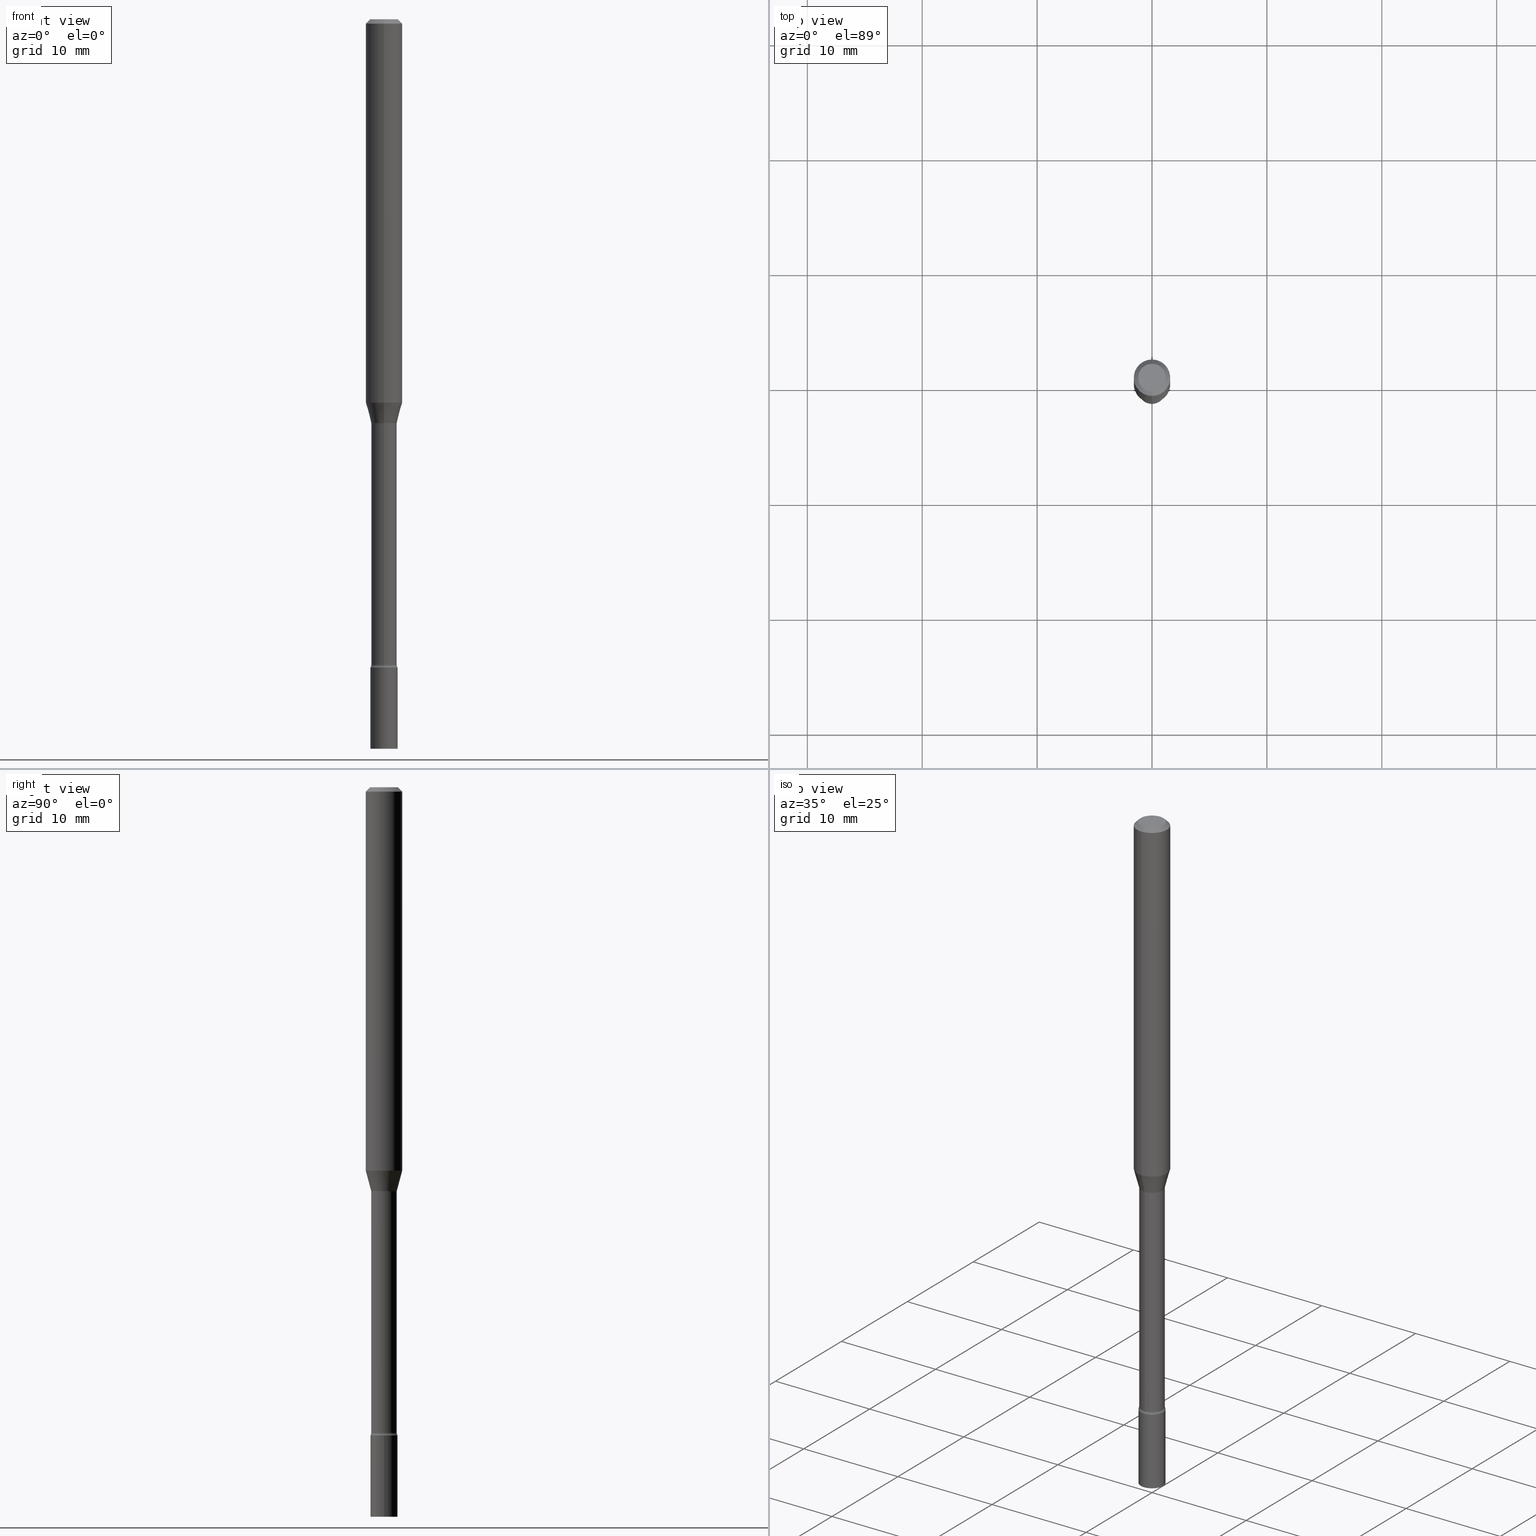
[diagram: canonical four-view strip — front | top / right | iso, engineering-drawing reading convention]
A machine part, canonical four-view strip (front | top / right | iso — engineering-drawing reading convention). The complete STEP part file that produces these views, byte-faithful:
ISO-10303-21;
HEADER;
FILE_DESCRIPTION (( 'STEP AP203' ),
    '1' );
FILE_NAME ('09394.STEP',
    '2024-03-08T23:39:57',
    ( '' ),
    ( '' ),
    'SwSTEP 2.0',
    'SolidWorks 2023',
    '' );
FILE_SCHEMA (( 'CONFIG_CONTROL_DESIGN' ));
ENDSEC;

DATA;
#1 = DIRECTION ( 'NONE',  ( -6.982962677686265133E-15, -1.000000000000000000, 6.179098042681423534E-15 ) ) ;
#2 = CIRCLE ( 'NONE', #29, 0.04370000000000000967 ) ;
#3 = CARTESIAN_POINT ( 'NONE',  ( 3.379881031711872748E-29, -4.825525931918901079E-15, -1.382092501787273164 ) ) ;
#4 = EDGE_LOOP ( 'NONE', ( #467, #381, #96, #458 ) ) ;
#5 = DIRECTION ( 'NONE',  ( -6.982962677686265922E-15, -1.000000000000000000, 3.491463795425199032E-15 ) ) ;
#6 = EDGE_CURVE ( 'NONE', #290, #146, #49, .T. ) ;
#7 = ORIENTED_EDGE ( 'NONE', *, *, #149, .F. ) ;
#8 = FACE_OUTER_BOUND ( 'NONE', #345, .T. ) ;
#9 = CARTESIAN_POINT ( 'NONE',  ( 5.431413426904964736E-29, -7.754541089639367290E-15, -2.221000000000000085 ) ) ;
#10 = AXIS2_PLACEMENT_3D ( 'NONE', #246, #456, #420 ) ;
#11 = EDGE_LOOP ( 'NONE', ( #162, #64, #412, #7 ) ) ;
#12 = DIRECTION ( 'NONE',  ( -2.445481056688412626E-29, 3.491463795425199032E-15, 1.000000000000000000 ) ) ;
#13 = COORDINATED_UNIVERSAL_TIME_OFFSET ( 5, 0, .BEHIND. ) ;
#14 = DIRECTION ( 'NONE',  ( -2.445481056688412626E-29, 3.491463795425199032E-15, 1.000000000000000000 ) ) ;
#15 = EDGE_LOOP ( 'NONE', ( #180, #26, #47, #132 ) ) ;
#16 = FACE_OUTER_BOUND ( 'NONE', #176, .T. ) ;
#17 = DIRECTION ( 'NONE',  ( 0.000000000000000000, 0.000000000000000000, 1.000000000000000000 ) ) ;
#18 = VERTEX_POINT ( 'NONE', #358 ) ;
#19 = CC_DESIGN_DATE_AND_TIME_ASSIGNMENT ( #139, #257, ( #69 ) ) ;
#20 = COORDINATED_UNIVERSAL_TIME_OFFSET ( 5, 0, .BEHIND. ) ;
#21 = DIRECTION ( 'NONE',  ( -2.445468806185136597E-29, 3.491481338843145583E-15, 1.000000000000000000 ) ) ;
#22 = TOROIDAL_SURFACE ( 'NONE', #505, 0.05870000000000011320, 0.01499999999999996822 ) ;
#23 = APPROVAL_DATE_TIME ( #395, #274 ) ;
#24 = EDGE_LOOP ( 'NONE', ( #388, #352, #446, #266 ) ) ;
#25 = ADVANCED_FACE ( 'NONE', ( #28 ), #182, .T. ) ;
#26 = ORIENTED_EDGE ( 'NONE', *, *, #204, .T. ) ;
#27 = EDGE_CURVE ( 'NONE', #509, #353, #191, .T. ) ;
#28 = FACE_OUTER_BOUND ( 'NONE', #11, .T. ) ;
#29 = AXIS2_PLACEMENT_3D ( 'NONE', #323, #520, #460 ) ;
#30 = SECURITY_CLASSIFICATION ( '', '', #171 ) ;
#31 = FACE_OUTER_BOUND ( 'NONE', #210, .T. ) ;
#32 = DIRECTION ( 'NONE',  ( -2.445481056688412626E-29, 3.491463795425199032E-15, 1.000000000000000000 ) ) ;
#33 = ORIENTED_EDGE ( 'NONE', *, *, #189, .F. ) ;
#34 = ADVANCED_FACE ( 'NONE', ( #216 ), #105, .T. ) ;
#35 = LINE ( 'NONE', #317, #436 ) ;
#36 = AXIS2_PLACEMENT_3D ( 'NONE', #224, #441, #228 ) ;
#37 = DIRECTION ( 'NONE',  ( 1.839019923739599526E-15, 0.2588190451025248473, 0.9659258262890670910 ) ) ;
#38 = CIRCLE ( 'NONE', #483, 0.04370000000000014845 ) ;
#39 = CARTESIAN_POINT ( 'NONE',  ( 3.668221585032625928E-31, -5.237195693137808926E-17, -0.01500000000000003067 ) ) ;
#40 = ORIENTED_EDGE ( 'NONE', *, *, #516, .T. ) ;
#41 = CARTESIAN_POINT ( 'NONE',  ( 3.389358108901824136E-29, -4.839105106536991295E-15, -1.385974787463811086 ) ) ;
#42 = LENGTH_MEASURE_WITH_UNIT ( LENGTH_MEASURE( 0.02539999999999999897 ), #76 );
#43 = ORIENTED_EDGE ( 'NONE', *, *, #70, .F. ) ;
#44 = FACE_OUTER_BOUND ( 'NONE', #517, .T. ) ;
#45 =( CONVERSION_BASED_UNIT ( 'INCH', #42 ) LENGTH_UNIT ( ) NAMED_UNIT ( #366 ) );
#46 = CARTESIAN_POINT ( 'NONE',  ( 3.105071755271642937E-16, 0.04370000000000007906, -1.525769678600814865E-16 ) ) ;
#47 = ORIENTED_EDGE ( 'NONE', *, *, #279, .F. ) ;
#48 = DIRECTION ( 'NONE',  ( -6.982962677686265922E-15, -1.000000000000000000, 3.491463795425199032E-15 ) ) ;
#49 = CIRCLE ( 'NONE', #435, 0.04370000000000000967 ) ;
#50 = TOROIDAL_SURFACE ( 'NONE', #179, 0.05870000000000000911, 0.01500000000000003587 ) ;
#51 = APPROVAL_PERSON_ORGANIZATION ( #58, #112, #387 ) ;
#52 = EDGE_LOOP ( 'NONE', ( #169, #164 ) ) ;
#53 = DIRECTION ( 'NONE',  ( -6.982962677686265922E-15, -1.000000000000000000, 3.491463795425199032E-15 ) ) ;
#54 = CARTESIAN_POINT ( 'NONE',  ( 0.000000000000000000, 0.000000000000000000, 0.000000000000000000 ) ) ;
#55 = VERTEX_POINT ( 'NONE', #258 ) ;
#56 = DIRECTION ( 'NONE',  ( -2.445481056688412626E-29, 3.491463795425199032E-15, 1.000000000000000000 ) ) ;
#57 = MANIFOLD_SOLID_BREP ( 'Body-Move/Copy2[2]', #81 ) ;
#58 = PERSON_AND_ORGANIZATION ( #519, #209 ) ;
#59 = EDGE_LOOP ( 'NONE', ( #425, #79, #199, #417 ) ) ;
#60 = CALENDAR_DATE ( 2024, 8, 3 ) ;
#61 = DIRECTION ( 'NONE',  ( -6.982962677686265922E-15, -1.000000000000000000, 3.491463795425199426E-15 ) ) ;
#62 = CALENDAR_DATE ( 2024, 8, 3 ) ;
#63 = PLANE ( 'NONE',  #36 ) ;
#64 = ORIENTED_EDGE ( 'NONE', *, *, #342, .T. ) ;
#65 = VERTEX_POINT ( 'NONE', #391 ) ;
#66 = TOROIDAL_SURFACE ( 'NONE', #253, 0.05870000000000011320, 0.01499999999999996822 ) ;
#67 = DIRECTION ( 'NONE',  ( -1.000000000000000000, 6.982962677686265922E-15, -4.883557194083112340E-29 ) ) ;
#68 = CARTESIAN_POINT ( 'NONE',  ( 4.170885858912336504E-16, 0.05869999999999239021, -2.212273030308292032 ) ) ;
#69 = PRODUCT_DEFINITION ( 'UNKNOWN', '', #114, #172 ) ;
#70 = EDGE_CURVE ( 'NONE', #240, #130, #354, .T. ) ;
#71 = VECTOR ( 'NONE', #37, 39.37007874015748143 ) ;
#72 = DIRECTION ( 'NONE',  ( -6.982962677686265922E-15, -1.000000000000000000, 3.491463795425199032E-15 ) ) ;
#73 = EDGE_CURVE ( 'NONE', #130, #240, #370, .T. ) ;
#74 =( NAMED_UNIT ( * ) SI_UNIT ( $, .STERADIAN. ) SOLID_ANGLE_UNIT ( ) );
#75 = LINE ( 'NONE', #409, #71 ) ;
#76 =( LENGTH_UNIT ( ) NAMED_UNIT ( * ) SI_UNIT ( $, .METRE. ) );
#77 = ADVANCED_FACE ( 'NONE', ( #110 ), #63, .F. ) ;
#78 = DIRECTION ( 'NONE',  ( 6.982962677686265922E-15, 1.000000000000000000, -3.483106191921935554E-15 ) ) ;
#79 = ORIENTED_EDGE ( 'NONE', *, *, #70, .T. ) ;
#80 = DIRECTION ( 'NONE',  ( -2.445481056688412346E-29, 3.491463795425199032E-15, 1.000000000000000000 ) ) ;
#81 = CLOSED_SHELL ( 'NONE', ( #168, #25, #462, #301, #133, #34, #94, #232, #513, #77, #126, #186, #423, #453 ) ) ;
#82 = CIRCLE ( 'NONE', #407, 0.04370000000000014845 ) ;
#83 = VECTOR ( 'NONE', #152, 39.37007874015749564 ) ;
#84 = LOCAL_TIME ( 18, 39, 57.00000000000000000, #223 ) ;
#85 = DIRECTION ( 'NONE',  ( -2.445481056688412626E-29, 3.491463795425199032E-15, 1.000000000000000000 ) ) ;
#86 = ORIENTED_EDGE ( 'NONE', *, *, #227, .T. ) ;
#87 = CARTESIAN_POINT ( 'NONE',  ( 5.410044686383593113E-29, -7.724110001747378179E-15, -2.212273030308292032 ) ) ;
#88 = EDGE_LOOP ( 'NONE', ( #183, #454, #499, #302 ) ) ;
#89 = LINE ( 'NONE', #336, #448 ) ;
#90 = FACE_OUTER_BOUND ( 'NONE', #88, .T. ) ;
#91 = FACE_OUTER_BOUND ( 'NONE', #439, .T. ) ;
#92 = ORIENTED_EDGE ( 'NONE', *, *, #95, .T. ) ;
#93 = CARTESIAN_POINT ( 'NONE',  ( 3.247077645124725348E-16, 0.04649999999999127748, -2.500000000000000000 ) ) ;
#94 = ADVANCED_FACE ( 'NONE', ( #399 ), #443, .T. ) ;
#95 = EDGE_CURVE ( 'NONE', #55, #290, #346, .T. ) ;
#96 = ORIENTED_EDGE ( 'NONE', *, *, #27, .F. ) ;
#97 = CARTESIAN_POINT ( 'NONE',  ( 7.071045929845197483E-46, -1.009547826687125577E-31, -2.891474424022146923E-17 ) ) ;
#98 = DIRECTION ( 'NONE',  ( -6.982962677686265133E-15, -1.000000000000000000, 6.179098042681423534E-15 ) ) ;
#99 = PERSON_AND_ORGANIZATION ( #519, #209 ) ;
#100 = EDGE_CURVE ( 'NONE', #489, #479, #234, .T. ) ;
#101 = DIRECTION ( 'NONE',  ( -6.982962677686265922E-15, -1.000000000000000000, 4.370956789862821150E-15 ) ) ;
#102 = ADVANCED_BREP_SHAPE_REPRESENTATION ( '09394', ( #419, #57, #321 ), #236 ) ;
#103 = CARTESIAN_POINT ( 'NONE',  ( 5.431386218537188310E-29, -7.754580053570626508E-15, -2.221000000000000085 ) ) ;
#104 = COORDINATED_UNIVERSAL_TIME_OFFSET ( 5, 0, .BEHIND. ) ;
#105 = CONICAL_SURFACE ( 'NONE', #119, 0.04421111260566398110, 0.2617993877991501850 ) ;
#106 = ORIENTED_EDGE ( 'NONE', *, *, #478, .F. ) ;
#107 = CIRCLE ( 'NONE', #272, 0.06250000000000000000 ) ;
#108 = LOCAL_TIME ( 18, 39, 57.00000000000000000, #13 ) ;
#109 = DIRECTION ( 'NONE',  ( -6.982962677686266711E-15, -1.000000000000000000, 6.251368406554376995E-15 ) ) ;
#110 = FACE_OUTER_BOUND ( 'NONE', #52, .T. ) ;
#111 = DIRECTION ( 'NONE',  ( 7.105427357601001859E-15, 1.000000000000000000, 0.000000000000000000 ) ) ;
#112 = APPROVAL ( #212, 'UNSPECIFIED' ) ;
#113 = CONICAL_SURFACE ( 'NONE', #411, 0.06250000000000000000, 0.7853981633974483900 ) ;
#114 = PRODUCT_DEFINITION_FORMATION_WITH_SPECIFIED_SOURCE ( 'ANY', '', #404, .NOT_KNOWN. ) ;
#115 = DIRECTION ( 'NONE',  ( -2.445481056688412626E-29, 3.491463795425199032E-15, 1.000000000000000000 ) ) ;
#116 = DIRECTION ( 'NONE',  ( -2.445481056688412626E-29, 3.491463795425199032E-15, 1.000000000000000000 ) ) ;
#117 = EDGE_CURVE ( 'NONE', #184, #65, #166, .T. ) ;
#118 = EDGE_CURVE ( 'NONE', #247, #489, #82, .T. ) ;
#119 = AXIS2_PLACEMENT_3D ( 'NONE', #514, #307, #98 ) ;
#120 = AXIS2_PLACEMENT_3D ( 'NONE', #3, #293, #158 ) ;
#121 = DIRECTION ( 'NONE',  ( -6.982962677686264344E-15, -1.000000000000000000, 6.251368406554356484E-15 ) ) ;
#122 = FACE_OUTER_BOUND ( 'NONE', #15, .T. ) ;
#123 = ORIENTED_EDGE ( 'NONE', *, *, #265, .T. ) ;
#124 = CARTESIAN_POINT ( 'NONE',  ( 3.105071755272183306E-16, 0.04369999999999516632, -1.385974787463811309 ) ) ;
#125 = DIRECTION ( 'NONE',  ( 6.982962677686265922E-15, 1.000000000000000000, -3.483106191921935554E-15 ) ) ;
#126 = ADVANCED_FACE ( 'NONE', ( #422 ), #383, .F. ) ;
#127 = ORIENTED_EDGE ( 'NONE', *, *, #324, .F. ) ;
#128 = CYLINDRICAL_SURFACE ( 'NONE', #263, 0.06250000000000000000 ) ;
#129 = AXIS2_PLACEMENT_3D ( 'NONE', #39, #449, #78 ) ;
#130 = VERTEX_POINT ( 'NONE', #503 ) ;
#131 = DIRECTION ( 'NONE',  ( -2.445481056688412626E-29, 3.491463795425199032E-15, 1.000000000000000000 ) ) ;
#132 = ORIENTED_EDGE ( 'NONE', *, *, #440, .F. ) ;
#133 = ADVANCED_FACE ( 'NONE', ( #498 ), #128, .T. ) ;
#134 = CARTESIAN_POINT ( 'NONE',  ( 0.000000000000000000, 0.000000000000000000, 0.000000000000000000 ) ) ;
#135 = CC_DESIGN_PERSON_AND_ORGANIZATION_ASSIGNMENT ( #181, #178, ( #404 ) ) ;
#136 = PERSON_AND_ORGANIZATION_ROLE ( 'creator' ) ;
#137 = ORIENTED_EDGE ( 'NONE', *, *, #239, .F. ) ;
#138 = CARTESIAN_POINT ( 'NONE',  ( 3.212964582869606003E-29, -4.587215871654971383E-15, -1.313837444817705258 ) ) ;
#139 = DATE_AND_TIME ( #254, #84 ) ;
#140 = CIRCLE ( 'NONE', #444, 0.04421111260566398110 ) ;
#141 = ORIENTED_EDGE ( 'NONE', *, *, #478, .T. ) ;
#142 = APPROVAL_STATUS ( 'not_yet_approved' ) ;
#143 = ORIENTED_EDGE ( 'NONE', *, *, #73, .F. ) ;
#144 = APPROVAL_DATE_TIME ( #339, #508 ) ;
#145 = CARTESIAN_POINT ( 'NONE',  ( 3.212964582869606003E-29, -4.587215871654971383E-15, -1.313837444817705258 ) ) ;
#146 = VERTEX_POINT ( 'NONE', #124 ) ;
#147 = CARTESIAN_POINT ( 'NONE',  ( 5.410044686383593113E-29, -7.724110001747378179E-15, -2.212273030308292032 ) ) ;
#148 = DIRECTION ( 'NONE',  ( -2.445468806185136597E-29, 3.491481338843145583E-15, 1.000000000000000000 ) ) ;
#149 = EDGE_CURVE ( 'NONE', #247, #290, #241, .T. ) ;
#150 = CARTESIAN_POINT ( 'NONE',  ( 0.04649999999999999967, -3.247077645124114474E-16, 2.267422200745110326E-30 ) ) ;
#151 = DIRECTION ( 'NONE',  ( -6.982962677686265133E-15, -1.000000000000000000, 6.179098042681423534E-15 ) ) ;
#152 = DIRECTION ( 'NONE',  ( -1.807323732225329350E-15, -0.2588190451025180194, 0.9659258262890689783 ) ) ;
#153 = CLOSED_SHELL ( 'NONE', ( #344, #403, #177, #225 ) ) ;
#154 = CIRCLE ( 'NONE', #207, 0.04749999999999999362 ) ;
#155 = VECTOR ( 'NONE', #362, 39.37007874015748143 ) ;
#156 = DIRECTION ( 'NONE',  ( -2.445481056688412626E-29, 3.491463795425199032E-15, 1.000000000000000000 ) ) ;
#157 = AXIS2_PLACEMENT_3D ( 'NONE', #238, #131, #284 ) ;
#158 = DIRECTION ( 'NONE',  ( -6.982962677686265133E-15, -1.000000000000000000, 6.179098042681423534E-15 ) ) ;
#159 = DIRECTION ( 'NONE',  ( -2.445468806185136877E-29, 3.491481338843145188E-15, 1.000000000000000000 ) ) ;
#160 = CARTESIAN_POINT ( 'NONE',  ( 3.204547738278597224E-16, 0.04369999999999241852, -2.212273030308292032 ) ) ;
#161 = DIRECTION ( 'NONE',  ( -2.445481056688412626E-29, 3.491463795425199032E-15, 1.000000000000000000 ) ) ;
#162 = ORIENTED_EDGE ( 'NONE', *, *, #118, .T. ) ;
#163 = CYLINDRICAL_SURFACE ( 'NONE', #408, 0.06250000000000000000 ) ;
#164 = ORIENTED_EDGE ( 'NONE', *, *, #239, .T. ) ;
#165 = DIRECTION ( 'NONE',  ( 2.438088387897960049E-29, -3.491481338843145188E-15, -1.000000000000000000 ) ) ;
#166 = CIRCLE ( 'NONE', #318, 0.04749999999999999362 ) ;
#167 = CIRCLE ( 'NONE', #363, 0.04649999999999999967 ) ;
#168 = ADVANCED_FACE ( 'NONE', ( #8 ), #50, .F. ) ;
#169 = ORIENTED_EDGE ( 'NONE', *, *, #117, .T. ) ;
#170 = DIRECTION ( 'NONE',  ( 1.000000000000000000, -7.105427357601001070E-15, 4.926315293697176034E-29 ) ) ;
#171 = SECURITY_CLASSIFICATION_LEVEL ( 'unclassified' ) ;
#172 = DESIGN_CONTEXT ( 'detailed design', #485, 'design' ) ;
#173 = VERTEX_POINT ( 'NONE', #455 ) ;
#174 = DIRECTION ( 'NONE',  ( -6.982962677686265922E-15, -1.000000000000000000, 3.491463795425199032E-15 ) ) ;
#175 = DIRECTION ( 'NONE',  ( 1.000000000000000000, 0.000000000000000000, 0.000000000000000000 ) ) ;
#176 = EDGE_LOOP ( 'NONE', ( #143, #43 ) ) ;
#177 = ADVANCED_FACE ( 'NONE', ( #211 ), #206, .T. ) ;
#178 = PERSON_AND_ORGANIZATION_ROLE ( 'design_owner' ) ;
#179 = AXIS2_PLACEMENT_3D ( 'NONE', #41, #466, #174 ) ;
#180 = ORIENTED_EDGE ( 'NONE', *, *, #73, .T. ) ;
#181 = PERSON_AND_ORGANIZATION ( #519, #209 ) ;
#182 = CYLINDRICAL_SURFACE ( 'NONE', #392, 0.04370000000000007906 ) ;
#183 = ORIENTED_EDGE ( 'NONE', *, *, #265, .F. ) ;
#184 = VERTEX_POINT ( 'NONE', #245 ) ;
#185 = AXIS2_PLACEMENT_3D ( 'NONE', #365, #67, #322 ) ;
#186 = ADVANCED_FACE ( 'NONE', ( #44 ), #22, .F. ) ;
#187 = CARTESIAN_POINT ( 'NONE',  ( -4.364351673553916201E-16, -0.06250000000000000000, 2.182164872140749395E-16 ) ) ;
#188 = CARTESIAN_POINT ( 'NONE',  ( 5.410071787841597970E-29, -7.724071190916995468E-15, -2.212273030308292032 ) ) ;
#189 = EDGE_CURVE ( 'NONE', #251, #146, #335, .T. ) ;
#190 = CC_DESIGN_DATE_AND_TIME_ASSIGNMENT ( #507, #259, ( #30 ) ) ;
#191 = CIRCLE ( 'NONE', #218, 0.06250000000000000000 ) ;
#192 = VECTOR ( 'NONE', #159, 39.37007874015748143 ) ;
#193 = DIRECTION ( 'NONE',  ( 4.937700262164548042E-15, 0.7071067811865451302, -0.7071067811865499042 ) ) ;
#194 = CARTESIAN_POINT ( 'NONE',  ( 3.304023721285007196E-16, 0.04649999999999222811, -2.221000000000000529 ) ) ;
#195 = DIRECTION ( 'NONE',  ( -2.445481056688412626E-29, 3.491463795425199032E-15, 1.000000000000000000 ) ) ;
#196 = VECTOR ( 'NONE', #295, 39.37007874015748143 ) ;
#197 = DIRECTION ( 'NONE',  ( -2.445481056688412626E-29, 3.491463795425199032E-15, 1.000000000000000000 ) ) ;
#198 = CARTESIAN_POINT ( 'NONE',  ( 0.000000000000000000, 0.000000000000000000, 0.000000000000000000 ) ) ;
#199 = ORIENTED_EDGE ( 'NONE', *, *, #440, .T. ) ;
#200 = DIRECTION ( 'NONE',  ( 7.105427357601001859E-15, 1.000000000000000000, 0.000000000000000000 ) ) ;
#201 = EDGE_LOOP ( 'NONE', ( #350, #385 ) ) ;
#202 = CARTESIAN_POINT ( 'NONE',  ( -3.247077645123569174E-16, -0.04650000000000773653, -2.221000000000000085 ) ) ;
#203 = DIRECTION ( 'NONE',  ( 1.000000000000000000, -6.982962677686267499E-15, 4.876176775795936353E-29 ) ) ;
#204 = EDGE_CURVE ( 'NONE', #240, #173, #338, .T. ) ;
#205 = ORIENTED_EDGE ( 'NONE', *, *, #376, .F. ) ;
#206 = CYLINDRICAL_SURFACE ( 'NONE', #277, 0.04649999999999999967 ) ;
#207 = AXIS2_PLACEMENT_3D ( 'NONE', #97, #256, #389 ) ;
#208 = APPROVAL_ROLE ( '' ) ;
#209 = ORGANIZATION ( 'UNSPECIFIED', 'UNSPECIFIED', '' ) ;
#210 = EDGE_LOOP ( 'NONE', ( #374, #40, #244, #106 ) ) ;
#211 = FACE_OUTER_BOUND ( 'NONE', #59, .T. ) ;
#212 = APPROVAL_STATUS ( 'not_yet_approved' ) ;
#213 = ORIENTED_EDGE ( 'NONE', *, *, #27, .T. ) ;
#214 = CARTESIAN_POINT ( 'NONE',  ( 0.000000000000000000, 0.000000000000000000, 0.000000000000000000 ) ) ;
#215 = PERSON_AND_ORGANIZATION ( #519, #209 ) ;
#216 = FACE_OUTER_BOUND ( 'NONE', #4, .T. ) ;
#217 = CC_DESIGN_PERSON_AND_ORGANIZATION_ASSIGNMENT ( #437, #476, ( #30 ) ) ;
#218 = AXIS2_PLACEMENT_3D ( 'NONE', #145, #32, #101 ) ;
#219 = APPROVAL_STATUS ( 'not_yet_approved' ) ;
#220 = CIRCLE ( 'NONE', #382, 0.04649999999999999967 ) ;
#221 = CC_DESIGN_SECURITY_CLASSIFICATION ( #30, ( #114 ) ) ;
#222 = EDGE_LOOP ( 'NONE', ( #137, #123, #465, #477 ) ) ;
#223 = COORDINATED_UNIVERSAL_TIME_OFFSET ( 5, 0, .BEHIND. ) ;
#224 = CARTESIAN_POINT ( 'NONE',  ( 3.316907271900976096E-16, 0.04749999999999999362, -1.803019024028076711E-16 ) ) ;
#225 = ADVANCED_FACE ( 'NONE', ( #16 ), #500, .T. ) ;
#226 = ORIENTED_EDGE ( 'NONE', *, *, #401, .F. ) ;
#227 = EDGE_CURVE ( 'NONE', #353, #509, #107, .T. ) ;
#228 = DIRECTION ( 'NONE',  ( 6.982962677686265922E-15, 1.000000000000000000, -3.491463795425199032E-15 ) ) ;
#229 = AXIS2_PLACEMENT_3D ( 'NONE', #270, #405, #233 ) ;
#230 = FACE_OUTER_BOUND ( 'NONE', #337, .T. ) ;
#231 = DIRECTION ( 'NONE',  ( -2.445481056688412626E-29, 3.491463795425199032E-15, 1.000000000000000000 ) ) ;
#232 = ADVANCED_FACE ( 'NONE', ( #463 ), #163, .T. ) ;
#233 = DIRECTION ( 'NONE',  ( -6.982962677686265922E-15, -1.000000000000000000, 3.491463795425199426E-15 ) ) ;
#234 = CIRCLE ( 'NONE', #482, 0.01499999999999996822 ) ;
#235 = CIRCLE ( 'NONE', #10, 0.04649999999999999967 ) ;
#236 =( GEOMETRIC_REPRESENTATION_CONTEXT ( 3 ) GLOBAL_UNCERTAINTY_ASSIGNED_CONTEXT ( ( #371 ) ) GLOBAL_UNIT_ASSIGNED_CONTEXT ( ( #45, #237, #74 ) ) REPRESENTATION_CONTEXT ( 'NONE', 'WORKASPACE' ) );
#237 =( NAMED_UNIT ( * ) PLANE_ANGLE_UNIT ( ) SI_UNIT ( $, .RADIAN. ) );
#238 = CARTESIAN_POINT ( 'NONE',  ( 3.668221585032625928E-31, -5.237195693137808926E-17, -0.01500000000000003067 ) ) ;
#239 = EDGE_CURVE ( 'NONE', #65, #184, #154, .T. ) ;
#240 = VERTEX_POINT ( 'NONE', #328 ) ;
#241 = LINE ( 'NONE', #418, #196 ) ;
#242 = AXIS2_PLACEMENT_3D ( 'NONE', #359, #314, #480 ) ;
#243 = DIRECTION ( 'NONE',  ( -6.982962677686265922E-15, -1.000000000000000000, 3.483106191921935554E-15 ) ) ;
#244 = ORIENTED_EDGE ( 'NONE', *, *, #149, .T. ) ;
#245 = CARTESIAN_POINT ( 'NONE',  ( 3.840629472727447874E-16, 0.04749999999999999362, -1.947592745229183872E-16 ) ) ;
#246 = CARTESIAN_POINT ( 'NONE',  ( 5.431386218537188310E-29, -7.754580053570626508E-15, -2.221000000000000085 ) ) ;
#247 = VERTEX_POINT ( 'NONE', #375 ) ;
#248 = DIRECTION ( 'NONE',  ( -4.851104656540964275E-15, -0.7071067811865500152, -0.7071067811865450192 ) ) ;
#249 = DIRECTION ( 'NONE',  ( 2.445481056688412626E-29, -3.491463795425199032E-15, -1.000000000000000000 ) ) ;
#250 = LINE ( 'NONE', #494, #475 ) ;
#251 = VERTEX_POINT ( 'NONE', #331 ) ;
#252 = DIRECTION ( 'NONE',  ( -6.982962677686265922E-15, -1.000000000000000000, 4.370956789862821150E-15 ) ) ;
#253 = AXIS2_PLACEMENT_3D ( 'NONE', #147, #197, #367 ) ;
#254 = CALENDAR_DATE ( 2024, 8, 3 ) ;
#255 = VERTEX_POINT ( 'NONE', #459 ) ;
#256 = DIRECTION ( 'NONE',  ( -2.445481056688412626E-29, 3.491463795425199032E-15, 1.000000000000000000 ) ) ;
#257 = DATE_TIME_ROLE ( 'creation_date' ) ;
#258 = CARTESIAN_POINT ( 'NONE',  ( -3.087245492643025853E-16, -0.04421111260566880363, -1.382092501787272942 ) ) ;
#259 = DATE_TIME_ROLE ( 'classification_date' ) ;
#260 = VERTEX_POINT ( 'NONE', #202 ) ;
#261 = AXIS2_PLACEMENT_3D ( 'NONE', #264, #21, #438 ) ;
#262 = PERSON_AND_ORGANIZATION_ROLE ( 'design_supplier' ) ;
#263 = AXIS2_PLACEMENT_3D ( 'NONE', #134, #12, #53 ) ;
#264 = CARTESIAN_POINT ( 'NONE',  ( 6.113672015462842613E-29, -8.728703347107864943E-15, -2.500000000000000000 ) ) ;
#265 = EDGE_CURVE ( 'NONE', #65, #255, #89, .T. ) ;
#266 = ORIENTED_EDGE ( 'NONE', *, *, #442, .F. ) ;
#267 = LINE ( 'NONE', #452, #83 ) ;
#268 = ORIENTED_EDGE ( 'NONE', *, *, #430, .T. ) ;
#269 = EDGE_CURVE ( 'NONE', #55, #509, #267, .T. ) ;
#270 = CARTESIAN_POINT ( 'NONE',  ( 0.000000000000000000, 0.000000000000000000, 0.000000000000000000 ) ) ;
#271 = CARTESIAN_POINT ( 'NONE',  ( 7.071045929845197483E-46, -1.009547826687125577E-31, -2.891474424022146923E-17 ) ) ;
#272 = AXIS2_PLACEMENT_3D ( 'NONE', #138, #414, #252 ) ;
#273 = CARTESIAN_POINT ( 'NONE',  ( 3.389358108901824136E-29, -4.839105106536991295E-15, -1.385974787463811086 ) ) ;
#274 = APPROVAL ( #142, 'UNSPECIFIED' ) ;
#275 = LINE ( 'NONE', #150, #155 ) ;
#276 = LINE ( 'NONE', #187, #394 ) ;
#277 = AXIS2_PLACEMENT_3D ( 'NONE', #386, #291, #343 ) ;
#278 = DIRECTION ( 'NONE',  ( -2.445481056688412626E-29, 3.491463795425199032E-15, 1.000000000000000000 ) ) ;
#279 = EDGE_CURVE ( 'NONE', #461, #173, #167, .T. ) ;
#280 = DIRECTION ( 'NONE',  ( -6.982962677686266711E-15, -1.000000000000000000, 5.874941921858630857E-15 ) ) ;
#281 = DIRECTION ( 'NONE',  ( -2.445468806185136597E-29, 3.491481338843145583E-15, 1.000000000000000000 ) ) ;
#282 = ORIENTED_EDGE ( 'NONE', *, *, #306, .T. ) ;
#283 = DIRECTION ( 'NONE',  ( -2.445481056688412626E-29, 3.491463795425199032E-15, 1.000000000000000000 ) ) ;
#284 = DIRECTION ( 'NONE',  ( -6.982962677686265922E-15, -1.000000000000000000, 3.483106191921935554E-15 ) ) ;
#285 = ORIENTED_EDGE ( 'NONE', *, *, #189, .T. ) ;
#286 = CIRCLE ( 'NONE', #299, 0.04649999999999999967 ) ;
#287 = DIRECTION ( 'NONE',  ( -1.000000000000000000, 6.982962677686265922E-15, -4.876176775795935793E-29 ) ) ;
#288 = LOCAL_TIME ( 18, 39, 57.00000000000000000, #104 ) ;
#289 = CARTESIAN_POINT ( 'NONE',  ( -4.364351673553592768E-16, -0.06250000000000455191, -1.313837444817705036 ) ) ;
#290 = VERTEX_POINT ( 'NONE', #484 ) ;
#291 = DIRECTION ( 'NONE',  ( -2.445468806185136597E-29, 3.491481338843145583E-15, 1.000000000000000000 ) ) ;
#292 = CARTESIAN_POINT ( 'NONE',  ( 5.431413426904964736E-29, -7.754541089639367290E-15, -2.221000000000000085 ) ) ;
#293 = DIRECTION ( 'NONE',  ( -2.445481056688412626E-29, 3.491463795425199032E-15, 1.000000000000000000 ) ) ;
#294 = ORIENTED_EDGE ( 'NONE', *, *, #306, .F. ) ;
#295 = DIRECTION ( 'NONE',  ( -2.445481056688412626E-29, 3.491463795425199032E-15, 1.000000000000000000 ) ) ;
#296 = PERSON_AND_ORGANIZATION ( #519, #209 ) ;
#297 = ORIENTED_EDGE ( 'NONE', *, *, #279, .T. ) ;
#298 = DIRECTION ( 'NONE',  ( -6.982962677686265922E-15, -1.000000000000000000, 3.491463795425199032E-15 ) ) ;
#299 = AXIS2_PLACEMENT_3D ( 'NONE', #292, #156, #280 ) ;
#300 = APPLICATION_PROTOCOL_DEFINITION ( 'international standard', 'config_control_design', 1994, #485 ) ;
#301 = ADVANCED_FACE ( 'NONE', ( #487 ), #326, .T. ) ;
#302 = ORIENTED_EDGE ( 'NONE', *, *, #324, .T. ) ;
#303 = APPROVAL_DATE_TIME ( #351, #112 ) ;
#304 = ORIENTED_EDGE ( 'NONE', *, *, #227, .F. ) ;
#305 = SHAPE_DEFINITION_REPRESENTATION ( #316, #102 ) ;
#306 = EDGE_CURVE ( 'NONE', #353, #18, #250, .T. ) ;
#307 = DIRECTION ( 'NONE',  ( -2.445481056688412626E-29, 3.491463795425199032E-15, 1.000000000000000000 ) ) ;
#308 = CALENDAR_DATE ( 2024, 8, 3 ) ;
#309 = AXIS2_PLACEMENT_3D ( 'NONE', #93, #165, #287 ) ;
#310 = CC_DESIGN_APPROVAL ( #508, ( #114 ) ) ;
#311 = ORIENTED_EDGE ( 'NONE', *, *, #497, .F. ) ;
#312 = FACE_OUTER_BOUND ( 'NONE', #24, .T. ) ;
#313 = DIRECTION ( 'NONE',  ( -2.445481056688412626E-29, 3.491463795425199032E-15, 1.000000000000000000 ) ) ;
#314 = DIRECTION ( 'NONE',  ( -2.438088387897960049E-29, 3.491481338843145188E-15, 1.000000000000000000 ) ) ;
#315 = DIRECTION ( 'NONE',  ( -6.982962677686268288E-15, -1.000000000000000000, 0.000000000000000000 ) ) ;
#316 = PRODUCT_DEFINITION_SHAPE ( 'NONE', 'NONE',  #69 ) ;
#317 = CARTESIAN_POINT ( 'NONE',  ( 4.364351673553919652E-16, 0.06249999999999995143, -0.01500000000000024751 ) ) ;
#318 = AXIS2_PLACEMENT_3D ( 'NONE', #271, #231, #406 ) ;
#319 = CC_DESIGN_PERSON_AND_ORGANIZATION_ASSIGNMENT ( #215, #262, ( #114 ) ) ;
#320 = AXIS2_PLACEMENT_3D ( 'NONE', #327, #161, #243 ) ;
#321 = AXIS2_PLACEMENT_3D ( 'NONE', #54, #17, #175 ) ;
#322 = DIRECTION ( 'NONE',  ( -6.982962677686266711E-15, -1.000000000000000000, 0.000000000000000000 ) ) ;
#323 = CARTESIAN_POINT ( 'NONE',  ( 3.389375087790498782E-29, -4.839080791802031638E-15, -1.385974787463811086 ) ) ;
#324 = EDGE_CURVE ( 'NONE', #18, #255, #372, .T. ) ;
#325 = CARTESIAN_POINT ( 'NONE',  ( 5.410071787841597970E-29, -7.724071190916995468E-15, -2.212273030308292032 ) ) ;
#326 = CONICAL_SURFACE ( 'NONE', #129, 0.06250000000000000000, 0.7853981633974483900 ) ;
#327 = CARTESIAN_POINT ( 'NONE',  ( 3.668221585032625928E-31, -5.237195693137808926E-17, -0.01500000000000003067 ) ) ;
#328 = CARTESIAN_POINT ( 'NONE',  ( -0.04649999999999999967, -7.911239328210799240E-15, -2.500000000000000000 ) ) ;
#329 = EDGE_CURVE ( 'NONE', #173, #461, #235, .T. ) ;
#330 = ORIENTED_EDGE ( 'NONE', *, *, #118, .F. ) ;
#331 = CARTESIAN_POINT ( 'NONE',  ( 3.791140294341959010E-16, 0.04421111260565915857, -1.382092501787273386 ) ) ;
#332 = APPLICATION_PROTOCOL_DEFINITION ( 'international standard', 'config_control_design', 1994, #450 ) ;
#333 = EDGE_LOOP ( 'NONE', ( #294, #86, #268, #127 ) ) ;
#334 = AXIS2_PLACEMENT_3D ( 'NONE', #402, #515, #151 ) ;
#335 = CIRCLE ( 'NONE', #393, 0.01500000000000003587 ) ;
#336 = CARTESIAN_POINT ( 'NONE',  ( -4.287811248607203282E-16, -0.06250000000000005551, -0.01499999999999981209 ) ) ;
#337 = EDGE_LOOP ( 'NONE', ( #33, #226, #92, #377 ) ) ;
#338 = LINE ( 'NONE', #378, #192 ) ;
#339 = DATE_AND_TIME ( #308, #288 ) ;
#340 = LINE ( 'NONE', #46, #495 ) ;
#341 = ORIENTED_EDGE ( 'NONE', *, *, #384, .F. ) ;
#342 = EDGE_CURVE ( 'NONE', #489, #146, #340, .T. ) ;
#343 = DIRECTION ( 'NONE',  ( 1.000000000000000000, -6.982962677686267499E-15, 4.876176775795936353E-29 ) ) ;
#344 = ADVANCED_FACE ( 'NONE', ( #122 ), #373, .T. ) ;
#345 = EDGE_LOOP ( 'NONE', ( #311, #285, #141, #496 ) ) ;
#346 = CIRCLE ( 'NONE', #410, 0.01500000000000003587 ) ;
#347 = CIRCLE ( 'NONE', #320, 0.06250000000000000000 ) ;
#348 = CALENDAR_DATE ( 2024, 8, 3 ) ;
#349 = LOCAL_TIME ( 18, 39, 57.00000000000000000, #433 ) ;
#350 = ORIENTED_EDGE ( 'NONE', *, *, #488, .F. ) ;
#351 = DATE_AND_TIME ( #62, #108 ) ;
#352 = ORIENTED_EDGE ( 'NONE', *, *, #100, .T. ) ;
#353 = VERTEX_POINT ( 'NONE', #380 ) ;
#354 = CIRCLE ( 'NONE', #493, 0.04649999999999999967 ) ;
#355 = CIRCLE ( 'NONE', #120, 0.04421111260566398110 ) ;
#356 = CYLINDRICAL_SURFACE ( 'NONE', #229, 0.04370000000000007906 ) ;
#357 = APPROVAL_PERSON_ORGANIZATION ( #99, #508, #510 ) ;
#358 = CARTESIAN_POINT ( 'NONE',  ( 4.440892098500949595E-16, 0.06249999999999995837, -0.01500000000000024751 ) ) ;
#359 = CARTESIAN_POINT ( 'NONE',  ( 5.431386218537188310E-29, -7.754580053570626508E-15, -2.221000000000000085 ) ) ;
#360 = DIRECTION ( 'NONE',  ( -1.000000000000000000, 6.982962677686265922E-15, -4.883557194083112340E-29 ) ) ;
#361 = CC_DESIGN_PERSON_AND_ORGANIZATION_ASSIGNMENT ( #471, #390, ( #69 ) ) ;
#362 = DIRECTION ( 'NONE',  ( -2.445468806185136877E-29, 3.491481338843145188E-15, 1.000000000000000000 ) ) ;
#363 = AXIS2_PLACEMENT_3D ( 'NONE', #103, #364, #379 ) ;
#364 = DIRECTION ( 'NONE',  ( -2.445468806185136597E-29, 3.491481338843145583E-15, 1.000000000000000000 ) ) ;
#365 = CARTESIAN_POINT ( 'NONE',  ( -4.098999091801304824E-16, -0.05870000000000784313, -2.212273030308291588 ) ) ;
#366 = DIMENSIONAL_EXPONENTS ( 1.000000000000000000, 0.000000000000000000, 0.000000000000000000, 0.000000000000000000, 0.000000000000000000, 0.000000000000000000, 0.000000000000000000 ) ;
#367 = DIRECTION ( 'NONE',  ( -6.982962677686265922E-15, -1.000000000000000000, 3.491463795425199032E-15 ) ) ;
#368 = DIRECTION ( 'NONE',  ( -2.445481056688412626E-29, 3.491463795425199032E-15, 1.000000000000000000 ) ) ;
#369 = DIRECTION ( 'NONE',  ( -6.982962677686266711E-15, -1.000000000000000000, 5.874941921858630857E-15 ) ) ;
#370 = CIRCLE ( 'NONE', #261, 0.04649999999999999967 ) ;
#371 = UNCERTAINTY_MEASURE_WITH_UNIT (LENGTH_MEASURE( 1.000000000000000082E-05 ), #45, 'distance_accuracy_value', 'NONE');
#372 = CIRCLE ( 'NONE', #157, 0.06250000000000000000 ) ;
#373 = CYLINDRICAL_SURFACE ( 'NONE', #457, 0.04649999999999999967 ) ;
#374 = ORIENTED_EDGE ( 'NONE', *, *, #342, .F. ) ;
#375 = CARTESIAN_POINT ( 'NONE',  ( -3.051554690148367184E-16, -0.04370000000000787144, -2.212273030308291588 ) ) ;
#376 = EDGE_CURVE ( 'NONE', #255, #18, #347, .T. ) ;
#377 = ORIENTED_EDGE ( 'NONE', *, *, #6, .T. ) ;
#378 = CARTESIAN_POINT ( 'NONE',  ( -0.04649999999999999967, 3.304023721284465841E-16, -2.287304816968531530E-30 ) ) ;
#379 = DIRECTION ( 'NONE',  ( 1.000000000000000000, -6.982962677686260400E-15, 0.000000000000000000 ) ) ;
#380 = CARTESIAN_POINT ( 'NONE',  ( 4.440892098500948609E-16, 0.06249999999999544115, -1.313837444817705702 ) ) ;
#381 = ORIENTED_EDGE ( 'NONE', *, *, #384, .T. ) ;
#382 = AXIS2_PLACEMENT_3D ( 'NONE', #9, #195, #369 ) ;
#383 = PLANE ( 'NONE',  #474 ) ;
#384 = EDGE_CURVE ( 'NONE', #251, #353, #75, .T. ) ;
#385 = ORIENTED_EDGE ( 'NONE', *, *, #397, .F. ) ;
#386 = CARTESIAN_POINT ( 'NONE',  ( 0.000000000000000000, 0.000000000000000000, 0.000000000000000000 ) ) ;
#387 = APPROVAL_ROLE ( '' ) ;
#388 = ORIENTED_EDGE ( 'NONE', *, *, #516, .F. ) ;
#389 = DIRECTION ( 'NONE',  ( -6.982962677686266711E-15, -1.000000000000000000, 3.491463795425199426E-15 ) ) ;
#390 = PERSON_AND_ORGANIZATION_ROLE ( 'creator' ) ;
#391 = CARTESIAN_POINT ( 'NONE',  ( -3.773273898774340269E-16, -0.04749999999999999362, 1.369297860424754734E-16 ) ) ;
#392 = AXIS2_PLACEMENT_3D ( 'NONE', #511, #313, #61 ) ;
#393 = AXIS2_PLACEMENT_3D ( 'NONE', #490, #170, #200 ) ;
#394 = VECTOR ( 'NONE', #115, 39.37007874015748143 ) ;
#395 = DATE_AND_TIME ( #60, #349 ) ;
#396 = LOCAL_TIME ( 18, 39, 57.00000000000000000, #20 ) ;
#397 = EDGE_CURVE ( 'NONE', #479, #260, #220, .T. ) ;
#398 = ORIENTED_EDGE ( 'NONE', *, *, #100, .F. ) ;
#399 = FACE_OUTER_BOUND ( 'NONE', #491, .T. ) ;
#400 = DIRECTION ( 'NONE',  ( -2.445481056688412626E-29, 3.491463795425199032E-15, 1.000000000000000000 ) ) ;
#401 = EDGE_CURVE ( 'NONE', #55, #251, #355, .T. ) ;
#402 = CARTESIAN_POINT ( 'NONE',  ( 3.379881031711872748E-29, -4.825525931918901079E-15, -1.382092501787273164 ) ) ;
#403 = ADVANCED_FACE ( 'NONE', ( #91 ), #451, .T. ) ;
#404 = PRODUCT ( '09394', '09394', '', ( #501 ) ) ;
#405 = DIRECTION ( 'NONE',  ( -2.445481056688412626E-29, 3.491463795425199032E-15, 1.000000000000000000 ) ) ;
#406 = DIRECTION ( 'NONE',  ( -6.982962677686266711E-15, -1.000000000000000000, 3.491463795425199426E-15 ) ) ;
#407 = AXIS2_PLACEMENT_3D ( 'NONE', #188, #283, #492 ) ;
#408 = AXIS2_PLACEMENT_3D ( 'NONE', #214, #56, #298 ) ;
#409 = CARTESIAN_POINT ( 'NONE',  ( 3.141388490182970891E-16, 0.04421111260565915857, -1.382092501787273386 ) ) ;
#410 = AXIS2_PLACEMENT_3D ( 'NONE', #445, #360, #315 ) ;
#411 = AXIS2_PLACEMENT_3D ( 'NONE', #416, #249, #125 ) ;
#412 = ORIENTED_EDGE ( 'NONE', *, *, #6, .F. ) ;
#413 = CC_DESIGN_APPROVAL ( #274, ( #30 ) ) ;
#414 = DIRECTION ( 'NONE',  ( -2.445481056688412626E-29, 3.491463795425199032E-15, 1.000000000000000000 ) ) ;
#415 = CC_DESIGN_PERSON_AND_ORGANIZATION_ASSIGNMENT ( #429, #136, ( #114 ) ) ;
#416 = CARTESIAN_POINT ( 'NONE',  ( 3.668221585032625928E-31, -5.237195693137808926E-17, -0.01500000000000003067 ) ) ;
#417 = ORIENTED_EDGE ( 'NONE', *, *, #329, .F. ) ;
#418 = CARTESIAN_POINT ( 'NONE',  ( -3.051554690148903609E-16, -0.04370000000000007906, 1.525769678600814865E-16 ) ) ;
#419 = MANIFOLD_SOLID_BREP ( 'Body-Move/Copy2[1]', #153 ) ;
#420 = DIRECTION ( 'NONE',  ( 1.000000000000000000, -6.982962677686260400E-15, 0.000000000000000000 ) ) ;
#421 = EDGE_LOOP ( 'NONE', ( #213, #282, #205, #472 ) ) ;
#422 = FACE_OUTER_BOUND ( 'NONE', #201, .T. ) ;
#423 = ADVANCED_FACE ( 'NONE', ( #31 ), #356, .T. ) ;
#424 = EDGE_CURVE ( 'NONE', #184, #18, #35, .T. ) ;
#425 = ORIENTED_EDGE ( 'NONE', *, *, #204, .F. ) ;
#426 = CARTESIAN_POINT ( 'NONE',  ( 3.247077645124656816E-16, 0.04649999999999224892, -2.221000000000000529 ) ) ;
#427 = CC_DESIGN_APPROVAL ( #112, ( #69 ) ) ;
#428 = ORIENTED_EDGE ( 'NONE', *, *, #329, .T. ) ;
#429 = PERSON_AND_ORGANIZATION ( #519, #209 ) ;
#430 = EDGE_CURVE ( 'NONE', #509, #255, #276, .T. ) ;
#431 = ORIENTED_EDGE ( 'NONE', *, *, #269, .T. ) ;
#432 = PRODUCT_RELATED_PRODUCT_CATEGORY ( 'detail', '', ( #404 ) ) ;
#433 = COORDINATED_UNIVERSAL_TIME_OFFSET ( 5, 0, .BEHIND. ) ;
#434 = DIRECTION ( 'NONE',  ( 1.000000000000000000, -6.982962677686260400E-15, 0.000000000000000000 ) ) ;
#435 = AXIS2_PLACEMENT_3D ( 'NONE', #470, #400, #109 ) ;
#436 = VECTOR ( 'NONE', #193, 39.37007874015748143 ) ;
#437 = PERSON_AND_ORGANIZATION ( #519, #209 ) ;
#438 = DIRECTION ( 'NONE',  ( 1.000000000000000000, -6.982962677686260400E-15, 0.000000000000000000 ) ) ;
#439 = EDGE_LOOP ( 'NONE', ( #297, #428 ) ) ;
#440 = EDGE_CURVE ( 'NONE', #130, #461, #275, .T. ) ;
#441 = DIRECTION ( 'NONE',  ( 2.445481056688412346E-29, -3.491463795425199032E-15, -1.000000000000000000 ) ) ;
#442 = EDGE_CURVE ( 'NONE', #247, #260, #468, .T. ) ;
#443 = CONICAL_SURFACE ( 'NONE', #334, 0.04421111260566398110, 0.2617993877991501850 ) ;
#444 = AXIS2_PLACEMENT_3D ( 'NONE', #464, #368, #1 ) ;
#445 = CARTESIAN_POINT ( 'NONE',  ( -4.098999091801499574E-16, -0.05870000000000485246, -1.385974787463810864 ) ) ;
#446 = ORIENTED_EDGE ( 'NONE', *, *, #397, .T. ) ;
#447 = CARTESIAN_POINT ( 'NONE',  ( 0.04649999999999999967, -8.079287818083037216E-15, -2.221000000000000085 ) ) ;
#448 = VECTOR ( 'NONE', #248, 39.37007874015748143 ) ;
#449 = DIRECTION ( 'NONE',  ( 2.445481056688412626E-29, -3.491463795425199032E-15, -1.000000000000000000 ) ) ;
#450 = APPLICATION_CONTEXT ( 'configuration controlled 3d designs of mechanical parts and assemblies' ) ;
#451 = PLANE ( 'NONE',  #242 ) ;
#452 = CARTESIAN_POINT ( 'NONE',  ( -3.087245492643025853E-16, -0.04421111260566880363, -1.382092501787272942 ) ) ;
#453 = ADVANCED_FACE ( 'NONE', ( #230 ), #518, .F. ) ;
#454 = ORIENTED_EDGE ( 'NONE', *, *, #117, .F. ) ;
#455 = CARTESIAN_POINT ( 'NONE',  ( -0.04649999999999999967, -7.911239328210799240E-15, -2.221000000000000085 ) ) ;
#456 = DIRECTION ( 'NONE',  ( -2.445468806185136597E-29, 3.491481338843145583E-15, 1.000000000000000000 ) ) ;
#457 = AXIS2_PLACEMENT_3D ( 'NONE', #198, #281, #203 ) ;
#458 = ORIENTED_EDGE ( 'NONE', *, *, #269, .F. ) ;
#459 = CARTESIAN_POINT ( 'NONE',  ( -4.364351673553912750E-16, -0.06250000000000005551, -0.01499999999999981209 ) ) ;
#460 = DIRECTION ( 'NONE',  ( -6.982962677686266711E-15, -1.000000000000000000, 6.251368406554376995E-15 ) ) ;
#461 = VERTEX_POINT ( 'NONE', #447 ) ;
#462 = ADVANCED_FACE ( 'NONE', ( #312 ), #66, .F. ) ;
#463 = FACE_OUTER_BOUND ( 'NONE', #333, .T. ) ;
#464 = CARTESIAN_POINT ( 'NONE',  ( 3.379881031711872748E-29, -4.825525931918901079E-15, -1.382092501787273164 ) ) ;
#465 = ORIENTED_EDGE ( 'NONE', *, *, #376, .T. ) ;
#466 = DIRECTION ( 'NONE',  ( -2.445481056688412626E-29, 3.491463795425199032E-15, 1.000000000000000000 ) ) ;
#467 = ORIENTED_EDGE ( 'NONE', *, *, #401, .T. ) ;
#468 = CIRCLE ( 'NONE', #185, 0.01499999999999996822 ) ;
#469 = DIRECTION ( 'NONE',  ( -2.445481056688412626E-29, 3.491463795425199032E-15, 1.000000000000000000 ) ) ;
#470 = CARTESIAN_POINT ( 'NONE',  ( 3.389375087790498782E-29, -4.839080791802031638E-15, -1.385974787463811086 ) ) ;
#471 = PERSON_AND_ORGANIZATION ( #519, #209 ) ;
#472 = ORIENTED_EDGE ( 'NONE', *, *, #430, .F. ) ;
#473 = CARTESIAN_POINT ( 'NONE',  ( 6.113672015462842613E-29, -8.728703347107864943E-15, -2.500000000000000000 ) ) ;
#474 = AXIS2_PLACEMENT_3D ( 'NONE', #426, #80, #48 ) ;
#475 = VECTOR ( 'NONE', #14, 39.37007874015748143 ) ;
#476 = PERSON_AND_ORGANIZATION_ROLE ( 'classification_officer' ) ;
#477 = ORIENTED_EDGE ( 'NONE', *, *, #424, .F. ) ;
#478 = EDGE_CURVE ( 'NONE', #146, #290, #2, .T. ) ;
#479 = VERTEX_POINT ( 'NONE', #194 ) ;
#480 = DIRECTION ( 'NONE',  ( 1.000000000000000000, -6.982962677686265922E-15, 4.876176775795935793E-29 ) ) ;
#481 = DIRECTION ( 'NONE',  ( 1.000000000000000000, -7.105427357601001070E-15, 4.926315293697176034E-29 ) ) ;
#482 = AXIS2_PLACEMENT_3D ( 'NONE', #68, #481, #111 ) ;
#483 = AXIS2_PLACEMENT_3D ( 'NONE', #325, #278, #121 ) ;
#484 = CARTESIAN_POINT ( 'NONE',  ( -3.051554690148559962E-16, -0.04370000000000485302, -1.385974787463810864 ) ) ;
#485 = APPLICATION_CONTEXT ( 'configuration controlled 3d designs of mechanical parts and assemblies' ) ;
#486 = AXIS2_PLACEMENT_3D ( 'NONE', #273, #116, #72 ) ;
#487 = FACE_OUTER_BOUND ( 'NONE', #222, .T. ) ;
#488 = EDGE_CURVE ( 'NONE', #260, #479, #286, .T. ) ;
#489 = VERTEX_POINT ( 'NONE', #160 ) ;
#490 = CARTESIAN_POINT ( 'NONE',  ( 4.170885858912127456E-16, 0.05869999999999517271, -1.385974787463811309 ) ) ;
#491 = EDGE_LOOP ( 'NONE', ( #341, #502, #431, #304 ) ) ;
#492 = DIRECTION ( 'NONE',  ( -6.982962677686264344E-15, -1.000000000000000000, 6.251368406554356484E-15 ) ) ;
#493 = AXIS2_PLACEMENT_3D ( 'NONE', #473, #148, #434 ) ;
#494 = CARTESIAN_POINT ( 'NONE',  ( 4.440892098500625669E-16, 0.06250000000000000000, -2.182164872140749395E-16 ) ) ;
#495 = VECTOR ( 'NONE', #85, 39.37007874015748143 ) ;
#496 = ORIENTED_EDGE ( 'NONE', *, *, #95, .F. ) ;
#497 = EDGE_CURVE ( 'NONE', #251, #55, #140, .T. ) ;
#498 = FACE_OUTER_BOUND ( 'NONE', #421, .T. ) ;
#499 = ORIENTED_EDGE ( 'NONE', *, *, #424, .T. ) ;
#500 = PLANE ( 'NONE',  #309 ) ;
#501 = MECHANICAL_CONTEXT ( 'NONE', #450, 'mechanical' ) ;
#502 = ORIENTED_EDGE ( 'NONE', *, *, #497, .T. ) ;
#503 = CARTESIAN_POINT ( 'NONE',  ( 0.04649999999999999967, -9.053411111620275650E-15, -2.500000000000000000 ) ) ;
#504 = ORIENTED_EDGE ( 'NONE', *, *, #442, .T. ) ;
#505 = AXIS2_PLACEMENT_3D ( 'NONE', #87, #469, #5 ) ;
#506 = APPROVAL_PERSON_ORGANIZATION ( #296, #274, #208 ) ;
#507 = DATE_AND_TIME ( #348, #396 ) ;
#508 = APPROVAL ( #219, 'UNSPECIFIED' ) ;
#509 = VERTEX_POINT ( 'NONE', #289 ) ;
#510 = APPROVAL_ROLE ( '' ) ;
#511 = CARTESIAN_POINT ( 'NONE',  ( 0.000000000000000000, 0.000000000000000000, 0.000000000000000000 ) ) ;
#512 = ORIENTED_EDGE ( 'NONE', *, *, #488, .T. ) ;
#513 = ADVANCED_FACE ( 'NONE', ( #90 ), #113, .T. ) ;
#514 = CARTESIAN_POINT ( 'NONE',  ( 3.379881031711872748E-29, -4.825525931918901079E-15, -1.382092501787273164 ) ) ;
#515 = DIRECTION ( 'NONE',  ( -2.445481056688412626E-29, 3.491463795425199032E-15, 1.000000000000000000 ) ) ;
#516 = EDGE_CURVE ( 'NONE', #489, #247, #38, .T. ) ;
#517 = EDGE_LOOP ( 'NONE', ( #398, #330, #504, #512 ) ) ;
#518 = TOROIDAL_SURFACE ( 'NONE', #486, 0.05870000000000000911, 0.01500000000000003587 ) ;
#519 = PERSON ( 'UNSPECIFIED', 'UNSPECIFIED', 'UNSPECIFIED', ('UNSPECIFIED'), ('UNSPECIFIED'), ('UNSPECIFIED') ) ;
#520 = DIRECTION ( 'NONE',  ( -2.445481056688412626E-29, 3.491463795425199032E-15, 1.000000000000000000 ) ) ;
ENDSEC;
END-ISO-10303-21;
